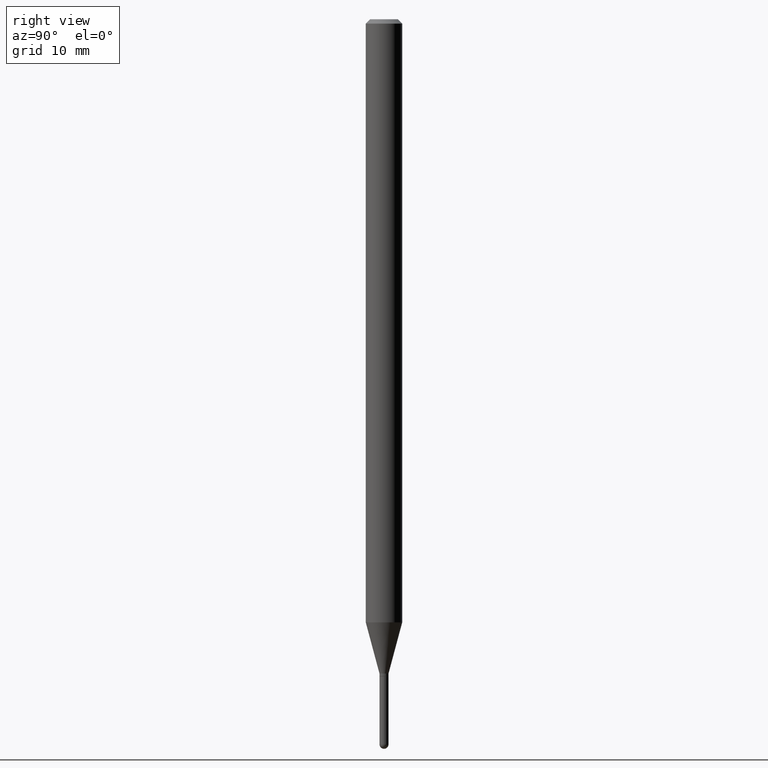
[diagram: clean part render]
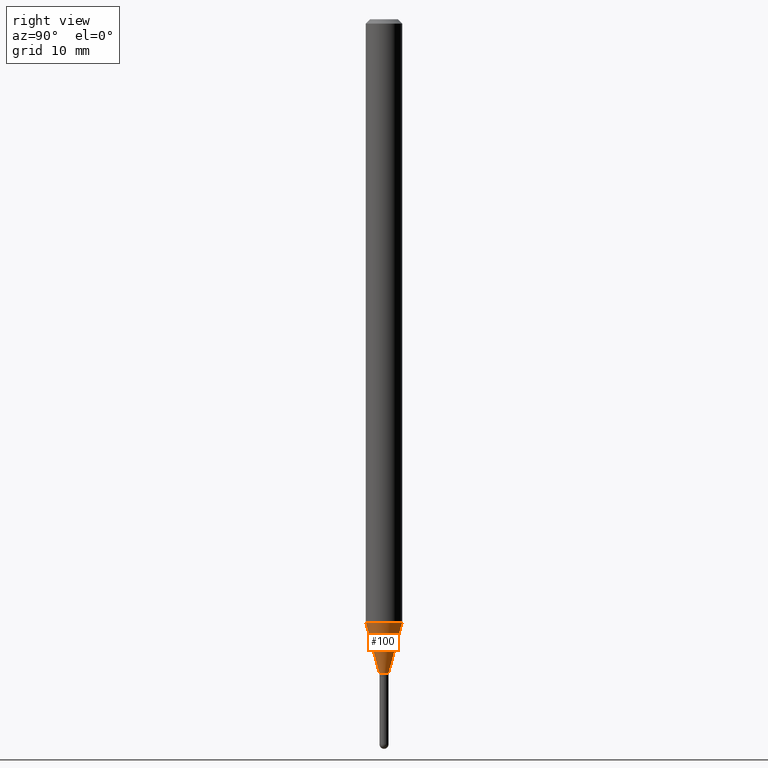
[diagram: same view with one face highlighted and labeled with its STEP entity id]
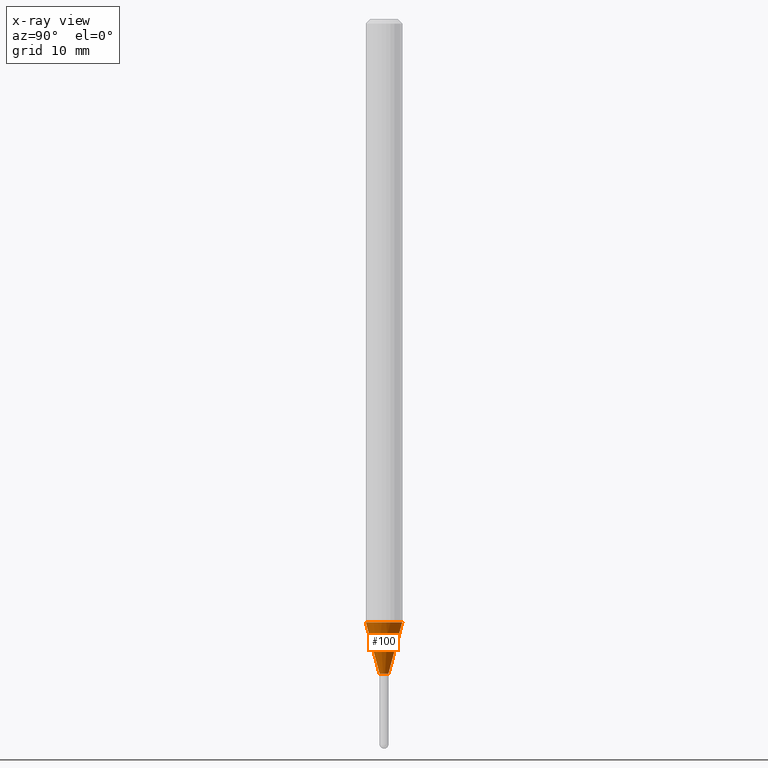
[diagram: x-ray of the same camera — body ghosted, the highlighted face saturated]
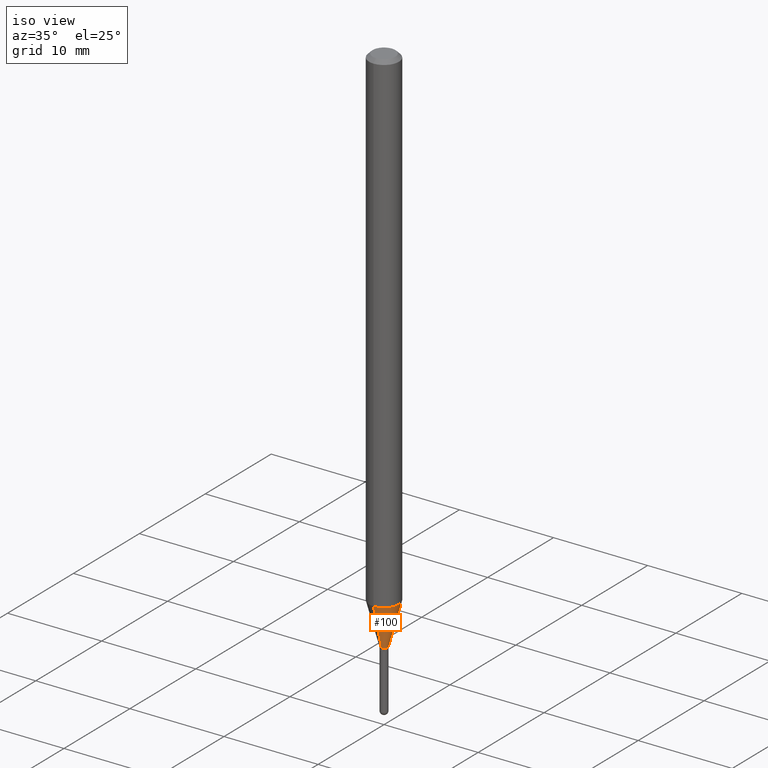
[diagram: same view with one face highlighted and labeled with its STEP entity id]
A machine part, right view. The second image highlights one B-rep face of the part: STEP entity #100.
The next image is the same camera in x-ray: the body ghosted, the highlighted face saturated — about 0% of this face is hidden behind the body in this view.
A second angle (iso view) of the same face is appended — the face is thin or edge-on in the first view.
In plain terms, the highlighted conical surface has half-angle 15 deg.
Its self-contained STEP definition (entity closure, byte-faithful):
#6 = CIRCLE ( 'NONE', #80, 0.06250000000000000000 ) ;
#17 = ORIENTED_EDGE ( 'NONE', *, *, #237, .T. ) ;
#42 = CARTESIAN_POINT ( 'NONE',  ( -1.082359215040798499E-16, -0.01550000000000747828, -2.241999999999999993 ) ) ;
#58 = VERTEX_POINT ( 'NONE', #379 ) ;
#80 = AXIS2_PLACEMENT_3D ( 'NONE', #118, #505, #509 ) ;
#81 = CIRCLE ( 'NONE', #222, 0.01549999999999964947 ) ;
#94 = DIRECTION ( 'NONE',  ( -1.807323732225329745E-15, -0.2588190451025181305, 0.9659258262890689783 ) ) ;
#100 = ADVANCED_FACE ( 'NONE', ( #144 ), #227, .T. ) ;
#101 = DIRECTION ( 'NONE',  ( -2.445459540351193417E-29, 3.491494608044730760E-15, 1.000000000000000000 ) ) ;
#110 = CARTESIAN_POINT ( 'NONE',  ( 1.101341240428678394E-16, 0.01549999999999182067, -2.241999999999999993 ) ) ;
#118 = CARTESIAN_POINT ( 'NONE',  ( 5.053771064602474327E-29, -7.215500453472225430E-15, -2.066593612044262063 ) ) ;
#130 = ORIENTED_EDGE ( 'NONE', *, *, #149, .F. ) ;
#135 = AXIS2_PLACEMENT_3D ( 'NONE', #147, #101, #488 ) ;
#136 = VERTEX_POINT ( 'NONE', #242 ) ;
#142 = ORIENTED_EDGE ( 'NONE', *, *, #361, .T. ) ;
#144 = FACE_OUTER_BOUND ( 'NONE', #174, .T. ) ;
#147 = CARTESIAN_POINT ( 'NONE',  ( 5.482720289467375391E-29, -7.827930911236285466E-15, -2.241999999999999993 ) ) ;
#149 = EDGE_CURVE ( 'NONE', #58, #432, #171, .T. ) ;
#171 = LINE ( 'NONE', #42, #420 ) ;
#174 = EDGE_LOOP ( 'NONE', ( #142, #17, #439, #130 ) ) ;
#196 = DIRECTION ( 'NONE',  ( 1.839019923739599921E-15, 0.2588190451025249028, 0.9659258262890670910 ) ) ;
#222 = AXIS2_PLACEMENT_3D ( 'NONE', #357, #386, #467 ) ;
#227 = CONICAL_SURFACE ( 'NONE', #135, 0.01549999999999964947, 0.2617993877991502405 ) ;
#237 = EDGE_CURVE ( 'NONE', #324, #136, #436, .T. ) ;
#240 = CARTESIAN_POINT ( 'NONE',  ( 2.771116669464905946E-16, 0.01549999999999181893, -2.241999999999999993 ) ) ;
#242 = CARTESIAN_POINT ( 'NONE',  ( 4.440892098501128074E-16, 0.06249999999999276273, -2.066593612044262507 ) ) ;
#284 = EDGE_CURVE ( 'NONE', #432, #136, #6, .T. ) ;
#303 = CARTESIAN_POINT ( 'NONE',  ( -4.364351673553412316E-16, -0.06250000000000721645, -2.066593612044261619 ) ) ;
#307 = VECTOR ( 'NONE', #196, 39.37007874015748143 ) ;
#324 = VERTEX_POINT ( 'NONE', #240 ) ;
#357 = CARTESIAN_POINT ( 'NONE',  ( 5.482720289467375391E-29, -7.827930911236285466E-15, -2.241999999999999993 ) ) ;
#361 = EDGE_CURVE ( 'NONE', #58, #324, #81, .T. ) ;
#379 = CARTESIAN_POINT ( 'NONE',  ( -1.082359215040798499E-16, -0.01550000000000747828, -2.241999999999999993 ) ) ;
#386 = DIRECTION ( 'NONE',  ( -2.445459540351193417E-29, 3.491494608044730760E-15, 1.000000000000000000 ) ) ;
#420 = VECTOR ( 'NONE', #94, 39.37007874015748143 ) ;
#432 = VERTEX_POINT ( 'NONE', #303 ) ;
#436 = LINE ( 'NONE', #110, #307 ) ;
#439 = ORIENTED_EDGE ( 'NONE', *, *, #284, .F. ) ;
#467 = DIRECTION ( 'NONE',  ( -6.982962677686265922E-15, -1.000000000000000000, 0.000000000000000000 ) ) ;
#488 = DIRECTION ( 'NONE',  ( -6.982962677686265922E-15, -1.000000000000000000, 0.000000000000000000 ) ) ;
#505 = DIRECTION ( 'NONE',  ( -2.445459540351193417E-29, 3.491494608044730760E-15, 1.000000000000000000 ) ) ;
#509 = DIRECTION ( 'NONE',  ( -6.982962677686265922E-15, -1.000000000000000000, 4.370956789862821150E-15 ) ) ;